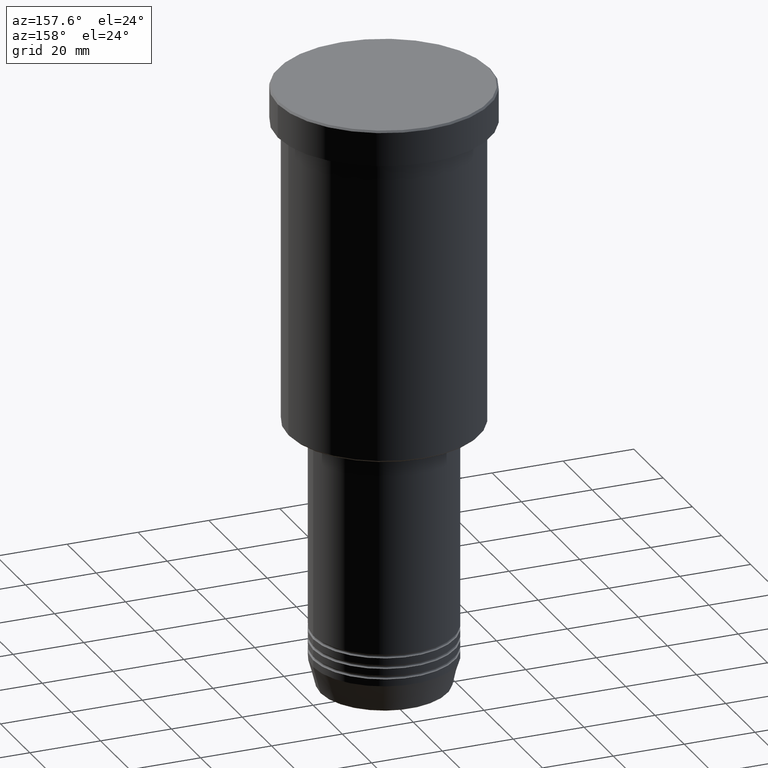
[diagram: clean part render]
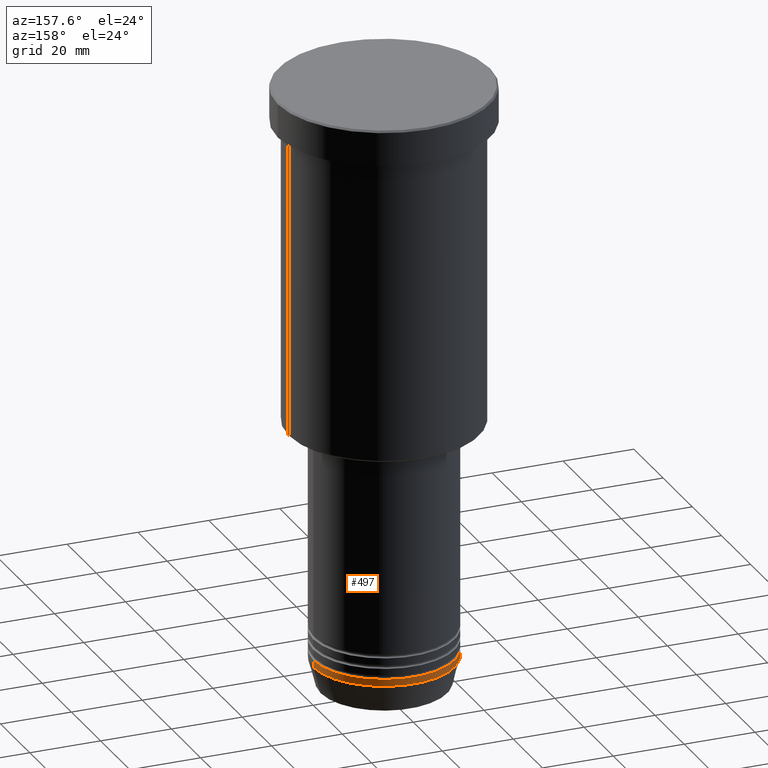
[diagram: same view with one face highlighted and labeled with its STEP entity id]
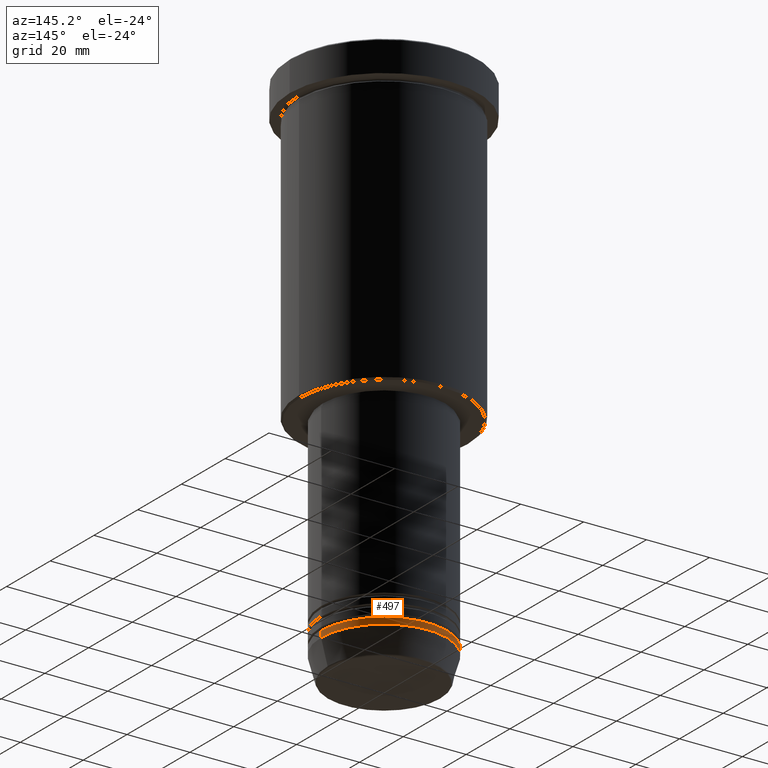
[diagram: same view with one face highlighted and labeled with its STEP entity id]
A machine part, auxiliary view. The second image highlights one B-rep face of the part: STEP entity #497.
A second angle (auxiliary view) of the same face is appended — the face is thin or edge-on in the first view.
In plain terms, the highlighted cylindrical surface (partial cylindrical patch) has radius 20 mm, axis along (-0, -0, 1).
Its self-contained STEP definition (entity closure, byte-faithful):
#7 = LINE ( 'NONE', #105, #865 ) ;
#21 = CARTESIAN_POINT ( 'NONE',  ( 20.00000000000000000, 0.000000000000000000, -163.0000000000000000 ) ) ;
#30 = ORIENTED_EDGE ( 'NONE', *, *, #584, .F. ) ;
#42 = DIRECTION ( 'NONE',  ( -0.000000000000000000, -0.000000000000000000, 1.000000000000000000 ) ) ;
#47 = CYLINDRICAL_SURFACE ( 'NONE', #485, 20.00000000000000000 ) ;
#55 = CIRCLE ( 'NONE', #850, 20.00000000000000000 ) ;
#56 = DIRECTION ( 'NONE',  ( 1.000000000000000000, 0.000000000000000000, 0.000000000000000000 ) ) ;
#102 = ORIENTED_EDGE ( 'NONE', *, *, #368, .F. ) ;
#105 = CARTESIAN_POINT ( 'NONE',  ( 20.00000000000000000, 0.000000000000000000, 0.000000000000000000 ) ) ;
#193 = ORIENTED_EDGE ( 'NONE', *, *, #528, .T. ) ;
#211 = VERTEX_POINT ( 'NONE', #534 ) ;
#222 = DIRECTION ( 'NONE',  ( 1.000000000000000000, 0.000000000000000000, 0.000000000000000000 ) ) ;
#248 = CARTESIAN_POINT ( 'NONE',  ( 0.000000000000000000, 0.000000000000000000, -163.0000000000000000 ) ) ;
#281 = EDGE_LOOP ( 'NONE', ( #193, #382, #30, #102 ) ) ;
#317 = VERTEX_POINT ( 'NONE', #741 ) ;
#328 = FACE_OUTER_BOUND ( 'NONE', #281, .T. ) ;
#346 = VERTEX_POINT ( 'NONE', #651 ) ;
#366 = VERTEX_POINT ( 'NONE', #21 ) ;
#368 = EDGE_CURVE ( 'NONE', #366, #317, #7, .T. ) ;
#382 = ORIENTED_EDGE ( 'NONE', *, *, #1095, .T. ) ;
#420 = AXIS2_PLACEMENT_3D ( 'NONE', #248, #775, #222 ) ;
#438 = DIRECTION ( 'NONE',  ( 1.000000000000000000, 0.000000000000000000, 0.000000000000000000 ) ) ;
#485 = AXIS2_PLACEMENT_3D ( 'NONE', #856, #42, #56 ) ;
#497 = ADVANCED_FACE ( 'NONE', ( #328 ), #47, .T. ) ;
#500 = DIRECTION ( 'NONE',  ( -0.000000000000000000, -0.000000000000000000, 1.000000000000000000 ) ) ;
#528 = EDGE_CURVE ( 'NONE', #366, #211, #1174, .T. ) ;
#534 = CARTESIAN_POINT ( 'NONE',  ( -20.00000000000000000, 2.449293598294706513E-15, -163.0000000000000000 ) ) ;
#584 = EDGE_CURVE ( 'NONE', #317, #346, #55, .T. ) ;
#629 = VECTOR ( 'NONE', #1170, 1000.000000000000000 ) ;
#651 = CARTESIAN_POINT ( 'NONE',  ( -20.00000000000000000, 2.449293598294706513E-15, -161.0000000000000000 ) ) ;
#705 = CARTESIAN_POINT ( 'NONE',  ( -20.00000000000000000, 2.449293598294706513E-15, 0.000000000000000000 ) ) ;
#741 = CARTESIAN_POINT ( 'NONE',  ( 20.00000000000000000, 0.000000000000000000, -161.0000000000000000 ) ) ;
#775 = DIRECTION ( 'NONE',  ( -0.000000000000000000, -0.000000000000000000, 1.000000000000000000 ) ) ;
#783 = LINE ( 'NONE', #705, #629 ) ;
#850 = AXIS2_PLACEMENT_3D ( 'NONE', #1160, #883, #438 ) ;
#856 = CARTESIAN_POINT ( 'NONE',  ( 0.000000000000000000, 0.000000000000000000, 0.000000000000000000 ) ) ;
#865 = VECTOR ( 'NONE', #500, 1000.000000000000000 ) ;
#883 = DIRECTION ( 'NONE',  ( -0.000000000000000000, -0.000000000000000000, 1.000000000000000000 ) ) ;
#1095 = EDGE_CURVE ( 'NONE', #211, #346, #783, .T. ) ;
#1160 = CARTESIAN_POINT ( 'NONE',  ( 0.000000000000000000, 0.000000000000000000, -161.0000000000000000 ) ) ;
#1170 = DIRECTION ( 'NONE',  ( -0.000000000000000000, -0.000000000000000000, 1.000000000000000000 ) ) ;
#1174 = CIRCLE ( 'NONE', #420, 20.00000000000000000 ) ;